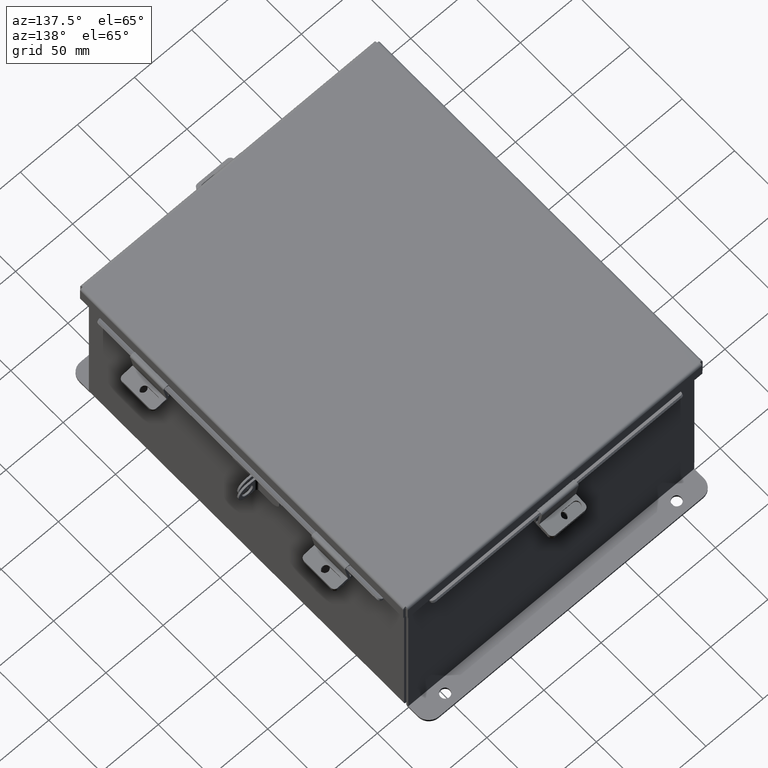
[diagram: clean part render]
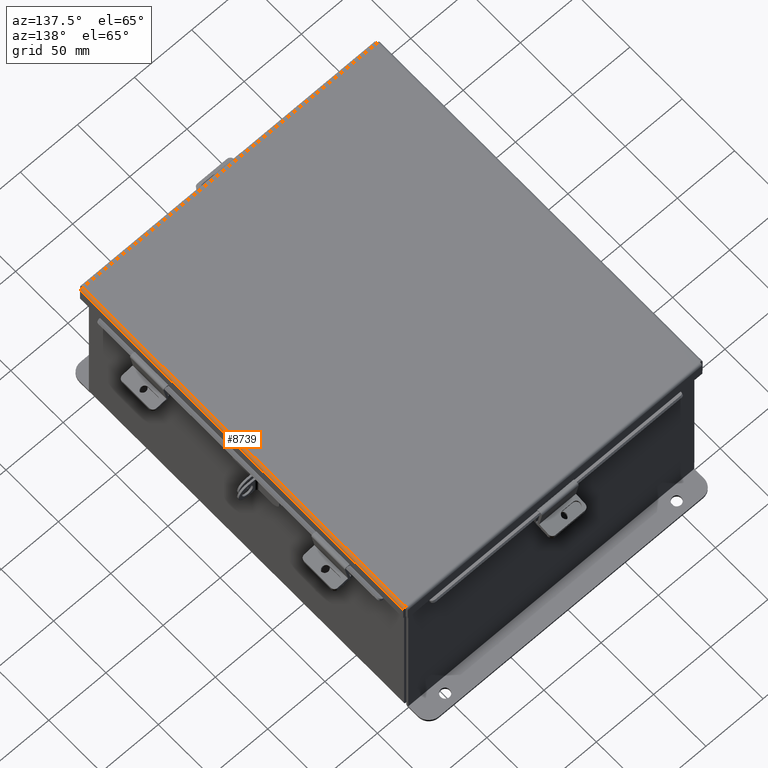
[diagram: same view with one face highlighted and labeled with its STEP entity id]
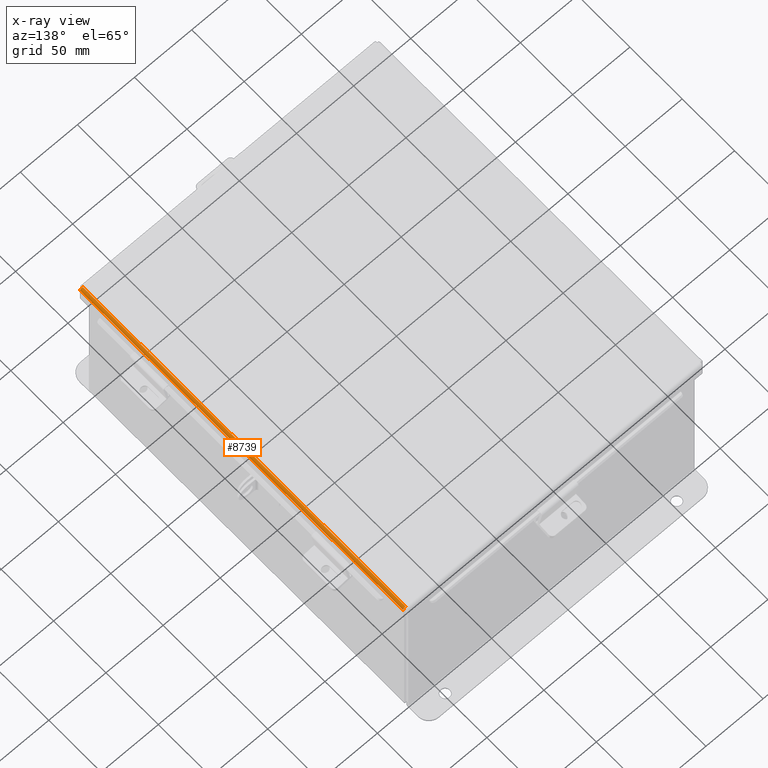
[diagram: x-ray of the same camera — body ghosted, the highlighted face saturated]
A machine part, auxiliary view. The second image highlights one B-rep face of the part: STEP entity #8739.
The next image is the same camera in x-ray: the body ghosted, the highlighted face saturated — about 0% of this face is hidden behind the body in this view.
In plain terms, the highlighted cylindrical surface (edge-blend (fillet) strip) has radius 2.2276 mm, axis along (-0, -1, -0).
Its self-contained STEP definition (entity closure, byte-faithful):
#531 = VECTOR ( 'NONE', #14532, 39.37007874015748100 ) ;
#624 = CARTESIAN_POINT ( 'NONE',  ( -5.153967403743811500, 6.073490776823449600, -0.009955289458309110300 ) ) ;
#710 = EDGE_CURVE ( 'NONE', #4190, #3366, #11678, .T. ) ;
#981 = DIRECTION ( 'NONE',  ( -2.258600338820354400E-033, -1.000000000000000000, 0.0000000000000000000 ) ) ;
#1021 = CARTESIAN_POINT ( 'NONE',  ( -5.068549999999998300, -6.074478932188134700, -0.07470000000000015500 ) ) ;
#1398 = LINE ( 'NONE', #13119, #531 ) ;
#1946 = CARTESIAN_POINT ( 'NONE',  ( -5.080029903154990500, 6.069044077682344900, -0.07469999999999998900 ) ) ;
#1992 = CARTESIAN_POINT ( 'NONE',  ( -5.156249999999999100, 6.074478932188137400, 0.01299999999999901400 ) ) ;
#2263 = CARTESIAN_POINT ( 'NONE',  ( -5.156249999999999100, -6.073984854505789100, 0.001520096845007029300 ) ) ;
#3178 = ORIENTED_EDGE ( 'NONE', *, *, #17186, .F. ) ;
#3334 = LINE ( 'NONE', #1021, #13341 ) ;
#3366 = VERTEX_POINT ( 'NONE', #4850 ) ;
#3675 = CARTESIAN_POINT ( 'NONE',  ( -5.153967403743809700, -6.073490776823447800, -0.009955289458309113700 ) ) ;
#3764 = DIRECTION ( 'NONE',  ( -1.000000000000000000, 0.0000000000000000000, -4.477801015840783100E-015 ) ) ;
#4190 = VERTEX_POINT ( 'NONE', #10893 ) ;
#4544 = AXIS2_PLACEMENT_3D ( 'NONE', #17368, #981, #3764 ) ;
#4850 = CARTESIAN_POINT ( 'NONE',  ( -5.068549999999998300, -6.068549999999999200, -0.07470000000000015500 ) ) ;
#4927 = ORIENTED_EDGE ( 'NONE', *, *, #710, .F. ) ;
#5037 = CARTESIAN_POINT ( 'NONE',  ( -5.138680782078319400, -6.072008543776412600, -0.04089574734180016800 ) ) ;
#6058 = CARTESIAN_POINT ( 'NONE',  ( -5.091505289458308600, 6.069538155364688800, -0.07241740374381128200 ) ) ;
#6396 = CARTESIAN_POINT ( 'NONE',  ( -5.112717384578526300, -6.070526310729377400, -0.06363106625866843400 ) ) ;
#7313 = CARTESIAN_POINT ( 'NONE',  ( -5.156249999999999100, 6.074478932188137400, 0.01299999999999901400 ) ) ;
#7440 = CARTESIAN_POINT ( 'NONE',  ( -5.122445747341799000, 6.071020388411723100, -0.05713078207832046600 ) ) ;
#7711 = EDGE_LOOP ( 'NONE', ( #3178, #4927, #12659, #12459 ) ) ;
#7764 = CARTESIAN_POINT ( 'NONE',  ( -5.080029903154990500, -6.069044077682343100, -0.07469999999999998900 ) ) ;
#7841 = DIRECTION ( 'NONE',  ( 2.258600338820354400E-033, 1.000000000000000000, -0.0000000000000000000 ) ) ;
#8739 = ADVANCED_FACE ( 'NONE', ( #9739 ), #16583, .T. ) ;
#8803 = CARTESIAN_POINT ( 'NONE',  ( -5.145181066258666100, 6.072502621458758300, -0.03116738457852804800 ) ) ;
#9739 = FACE_OUTER_BOUND ( 'NONE', #7711, .T. ) ;
#10166 = CARTESIAN_POINT ( 'NONE',  ( -5.156249999999999100, 6.073984854505791700, 0.001520096845007032300 ) ) ;
#10212 = VERTEX_POINT ( 'NONE', #7313 ) ;
#10452 = VERTEX_POINT ( 'NONE', #13673 ) ;
#10893 = CARTESIAN_POINT ( 'NONE',  ( -5.156249999999999100, -6.074478932188134700, 0.01300000000000010700 ) ) ;
#11466 = CARTESIAN_POINT ( 'NONE',  ( -5.068549999999998300, 6.068550000000001000, -0.07470000000000015500 ) ) ;
#11678 = B_SPLINE_CURVE_WITH_KNOTS ( 'NONE', 3,
 ( #11793, #2263, #3675, #13178, #5037, #14583, #6396, #15946, #7764, #17329 ),
 .UNSPECIFIED., .F., .F.,
 ( 4, 2, 2, 2, 4 ),
 ( 0.0000000000000000000, 0.2500000000000000000, 0.5000000000000000000, 0.7500000000000000000, 1.000000000000000000 ),
 .UNSPECIFIED. ) ;
#11793 = CARTESIAN_POINT ( 'NONE',  ( -5.156249999999999100, -6.074478932188134700, 0.01300000000000010700 ) ) ;
#12459 = ORIENTED_EDGE ( 'NONE', *, *, #13031, .F. ) ;
#12659 = ORIENTED_EDGE ( 'NONE', *, *, #17130, .T. ) ;
#13031 = EDGE_CURVE ( 'NONE', #10452, #10212, #13863, .T. ) ;
#13119 = CARTESIAN_POINT ( 'NONE',  ( -5.156249999999999100, 6.156249999999999100, 0.01299999999999901400 ) ) ;
#13178 = CARTESIAN_POINT ( 'NONE',  ( -5.145181066258666100, -6.072502621458755600, -0.03116738457852804100 ) ) ;
#13341 = VECTOR ( 'NONE', #7841, 39.37007874015748100 ) ;
#13673 = CARTESIAN_POINT ( 'NONE',  ( -5.068549999999998300, 6.068550000000001000, -0.07470000000000015500 ) ) ;
#13863 = B_SPLINE_CURVE_WITH_KNOTS ( 'NONE', 3,
 ( #11466, #1946, #6058, #15622, #7440, #16988, #8803, #624, #10166, #1992 ),
 .UNSPECIFIED., .F., .F.,
 ( 4, 2, 2, 2, 4 ),
 ( 0.0000000000000000000, 0.2500000000000000000, 0.5000000000000000000, 0.7500000000000000000, 1.000000000000000000 ),
 .UNSPECIFIED. ) ;
#14532 = DIRECTION ( 'NONE',  ( 2.258600338820354400E-033, 1.000000000000000000, -0.0000000000000000000 ) ) ;
#14583 = CARTESIAN_POINT ( 'NONE',  ( -5.122445747341797300, -6.071020388411723100, -0.05713078207832048700 ) ) ;
#15622 = CARTESIAN_POINT ( 'NONE',  ( -5.112717384578525400, 6.070526310729379200, -0.06363106625866844800 ) ) ;
#15946 = CARTESIAN_POINT ( 'NONE',  ( -5.091505289458308600, -6.069538155364689700, -0.07241740374381128200 ) ) ;
#16583 = CYLINDRICAL_SURFACE ( 'NONE', #4544, 0.08770000000000026400 ) ;
#16988 = CARTESIAN_POINT ( 'NONE',  ( -5.138680782078321100, 6.072008543776413500, -0.04089574734180016800 ) ) ;
#17130 = EDGE_CURVE ( 'NONE', #4190, #10212, #1398, .T. ) ;
#17186 = EDGE_CURVE ( 'NONE', #3366, #10452, #3334, .T. ) ;
#17329 = CARTESIAN_POINT ( 'NONE',  ( -5.068549999999998300, -6.068549999999999200, -0.07470000000000015500 ) ) ;
#17368 = CARTESIAN_POINT ( 'NONE',  ( -5.068549999999998300, -6.074478932188134700, 0.01300000000000010700 ) ) ;